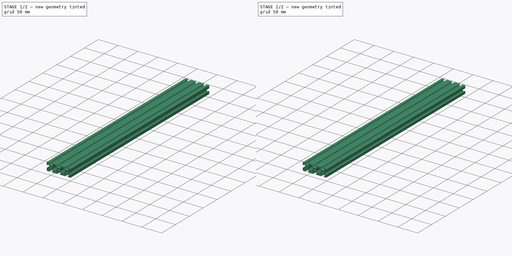
[diagram: build sequence overview — one tinted view per stage of 2, left to right]
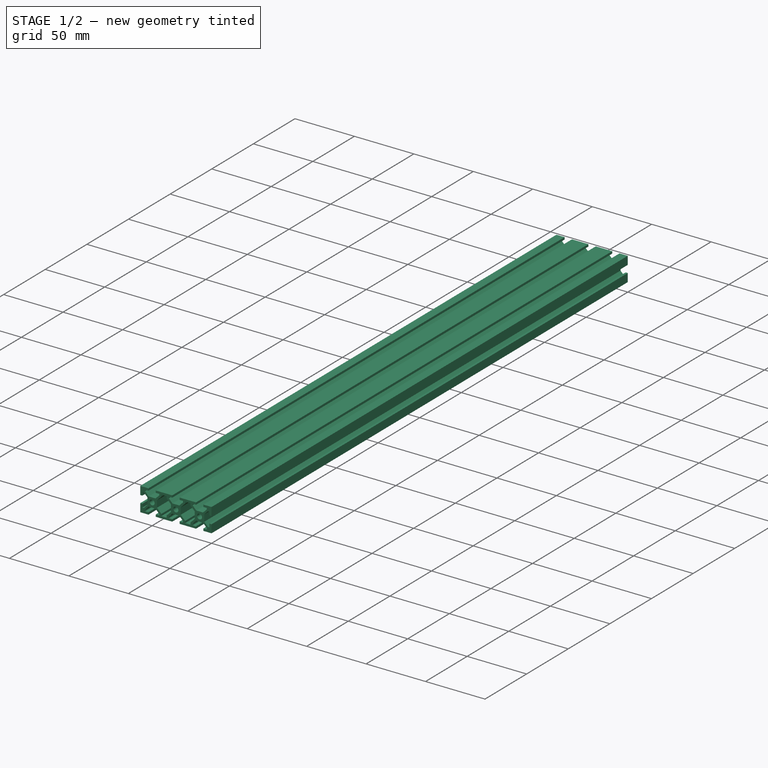
[diagram: stage 1 of 2 — iso view after this stage's code; geometry added in this stage tinted green]
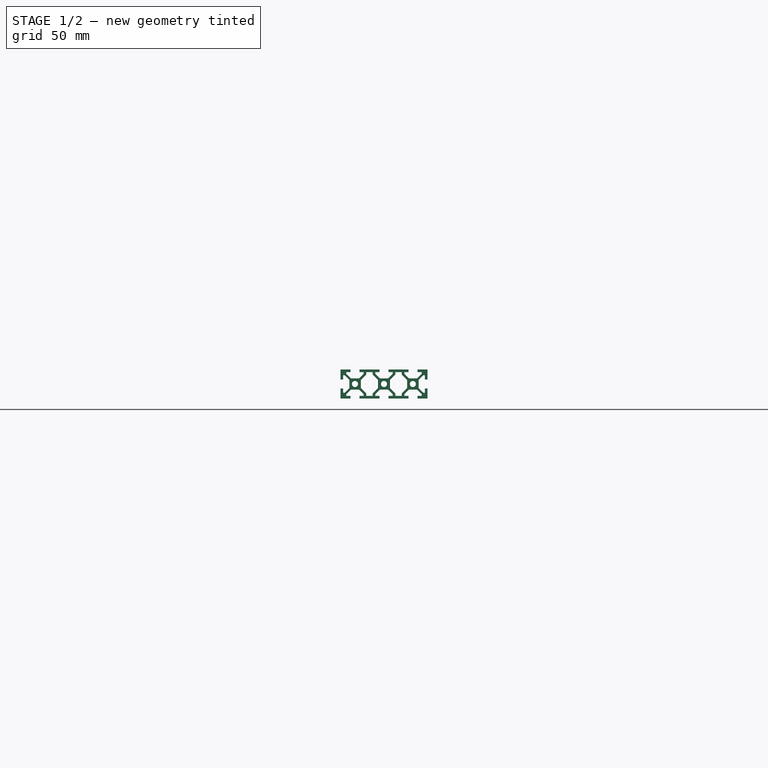
[diagram: stage 1 of 2 — front view after this stage's code; geometry added in this stage tinted green]
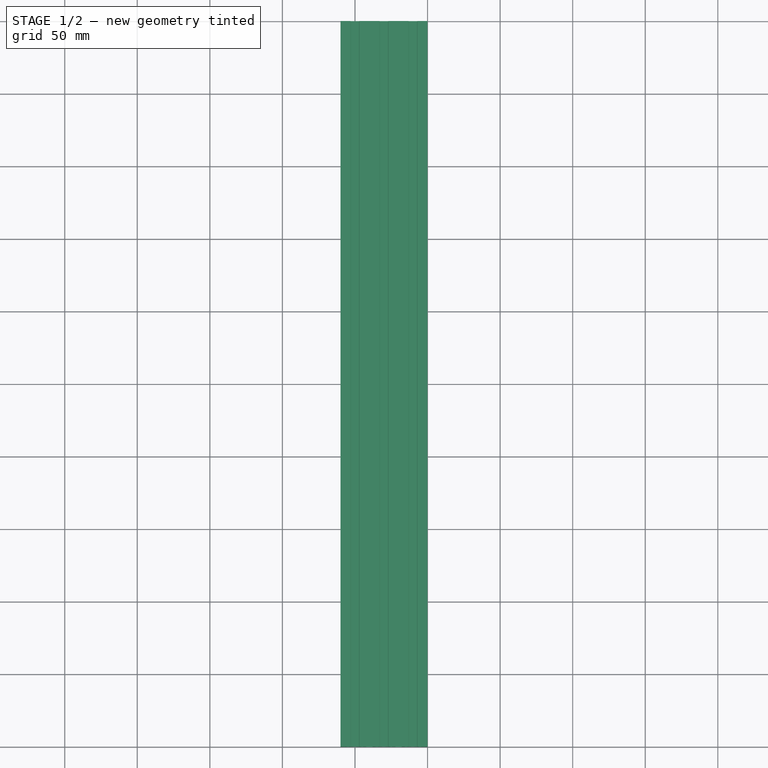
[diagram: stage 1 of 2 — top view after this stage's code; geometry added in this stage tinted green]
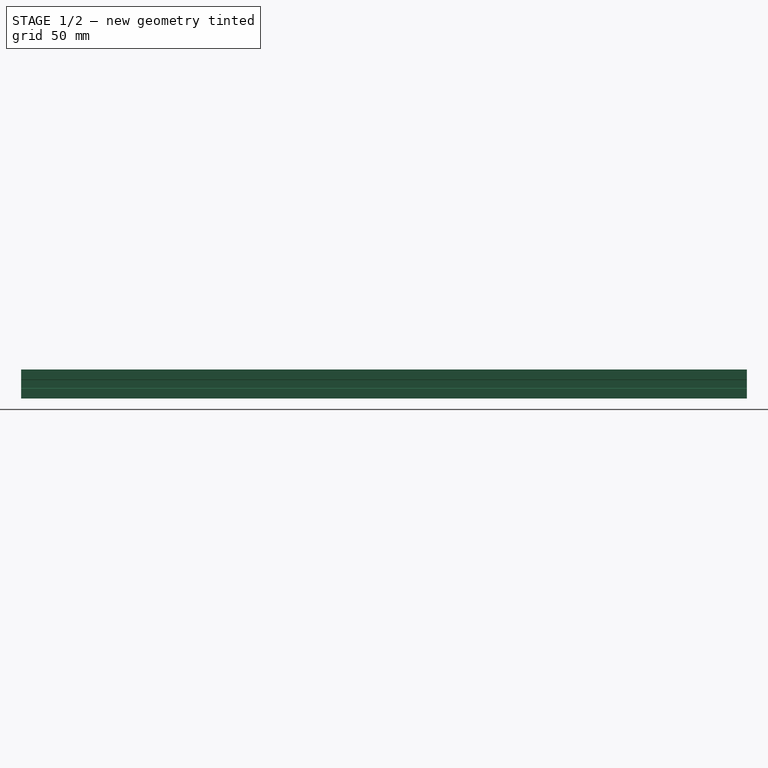
[diagram: stage 1 of 2 — right view after this stage's code; geometry added in this stage tinted green]
FCSTD DOCUMENT  (FreeCAD 0.21R33668 +7 (Git))
Label: 2060 Extrusion
License: All rights reserved
LicenseURL: http://en.wikipedia.org/wiki/All_rights_reserved
objects: Sketcher::SketchObject×1, PartDesign::Pad×1, PartDesign::Fillet×1, PartDesign::Body×1
note: 6 computed .brp shape members not serialized (recipe doc carries the construction recipe); baked Part::Feature solids carry a one-line shape summary decoded from their .brp

FEATURE [Sketcher::SketchObject] Sketch
  FullyConstrained = true
  MapMode = 5
  Placement = pos=(0,0,0) rot=(1,0,0;1.5708rad)
  Support = -> [XZ_Plane]
  sketch-geometry (118):
    g0: LineSegment StartX=-10 StartY=10 StartZ=0 EndX=-3.1 EndY=10 EndZ=0
    g1: LineSegment StartX=16.9 StartY=-10 StartZ=0 EndX=3.1 EndY=-10 EndZ=0
    g2: LineSegment StartX=-10 StartY=-10 StartZ=0 EndX=-10 EndY=-3.1 EndZ=0
    g3: LineSegment StartX=-3.1 StartY=10 StartZ=0 EndX=-3.1 EndY=8.2 EndZ=0
    g4: LineSegment StartX=-3.1 StartY=8.2 StartZ=0 EndX=-6 EndY=8.2 EndZ=0
    g5: LineSegment StartX=-6 StartY=8.2 StartZ=0 EndX=-6 EndY=7.06066 EndZ=0
    g6: LineSegment StartX=-6 StartY=7.06066 StartZ=0 EndX=-2.83934 EndY=3.9 EndZ=0
    g7: LineSegment StartX=-2.83934 StartY=3.9 StartZ=0 EndX=2.83934 EndY=3.9 EndZ=0
    g8: LineSegment StartX=2.83934 StartY=3.9 StartZ=0 EndX=6 EndY=7.06066 EndZ=0
    g9: LineSegment StartX=6 StartY=7.06066 StartZ=0 EndX=6 EndY=8.2 EndZ=0
    g10: LineSegment StartX=6 StartY=8.2 StartZ=0 EndX=3.1 EndY=8.2 EndZ=0
    g11: LineSegment StartX=3.1 StartY=8.2 StartZ=0 EndX=3.1 EndY=10 EndZ=0
    g12: LineSegment StartX=-10 StartY=3.1 StartZ=0 EndX=-8.2 EndY=3.1 EndZ=0
    g13: LineSegment StartX=-8.2 StartY=3.1 StartZ=0 EndX=-8.2 EndY=6 EndZ=0
    g14: LineSegment StartX=-8.2 StartY=6 StartZ=0 EndX=-7.06066 EndY=6 EndZ=0
    g15: LineSegment StartX=-7.06066 StartY=6 StartZ=0 EndX=-3.9 EndY=2.83934 EndZ=0
    g16: LineSegment StartX=-3.9 StartY=2.83934 StartZ=0 EndX=-3.9 EndY=-2.83934 EndZ=0
    g17: LineSegment StartX=-3.9 StartY=-2.83934 StartZ=0 EndX=-7.06066 EndY=-6 EndZ=0
    g18: LineSegment StartX=-7.06066 StartY=-6 StartZ=0 EndX=-8.2 EndY=-6 EndZ=0
    g19: LineSegment StartX=-8.2 StartY=-6 StartZ=0 EndX=-8.2 EndY=-3.1 EndZ=0
    g20: LineSegment StartX=-8.2 StartY=-3.1 StartZ=0 EndX=-10 EndY=-3.1 EndZ=0
    g21: LineSegment StartX=-3.1 StartY=-10 StartZ=0 EndX=-3.1 EndY=-8.2 EndZ=0
    g22: LineSegment StartX=-3.1 StartY=-8.2 StartZ=0 EndX=-6 EndY=-8.2 EndZ=0
    g23: LineSegment StartX=-6 StartY=-8.2 StartZ=0 EndX=-6 EndY=-7.06066 EndZ=0
    g24: LineSegment StartX=-6 StartY=-7.06066 StartZ=0 EndX=-2.83934 EndY=-3.9 EndZ=0
    g25: LineSegment StartX=-2.83934 StartY=-3.9 StartZ=0 EndX=2.83934 EndY=-3.9 EndZ=0
    g26: LineSegment StartX=2.83934 StartY=-3.9 StartZ=0 EndX=6 EndY=-7.06066 EndZ=0
    g27: LineSegment StartX=6 StartY=-7.06066 StartZ=0 EndX=6 EndY=-8.2 EndZ=0
    g28: LineSegment StartX=6 StartY=-8.2 StartZ=0 EndX=3.1 EndY=-8.2 EndZ=0
    g29: LineSegment StartX=3.1 StartY=-8.2 StartZ=0 EndX=3.1 EndY=-10 EndZ=0
    g30: LineSegment StartX=7.8 StartY=-6.53934 StartZ=0 EndX=4.1 EndY=-2.83934 EndZ=0
    g31: LineSegment StartX=4.1 StartY=-2.83934 StartZ=0 EndX=4.1 EndY=2.83934 EndZ=0
    g32: LineSegment StartX=4.1 StartY=2.83934 StartZ=0 EndX=7.8 EndY=6.53934 EndZ=0
    g33: LineSegment StartX=-10 StartY=3.1 StartZ=0 EndX=-10 EndY=10 EndZ=0
    g34: LineSegment StartX=3.1 StartY=10 StartZ=0 EndX=16.9 EndY=10 EndZ=0
    g35: LineSegment StartX=-3.1 StartY=-10 StartZ=0 EndX=-10 EndY=-10 EndZ=0
    g36: Circle CenterX=0 CenterY=0 CenterZ=0 NormalX=0 NormalY=0 NormalZ=1 AngleXU=0 Radius=2.1
    g37: LineSegment StartX=7.8 StartY=6.53934 StartZ=0 EndX=7.8 EndY=8.2 EndZ=0
    g38: LineSegment StartX=7.8 StartY=8.2 StartZ=0 EndX=12.2 EndY=8.2 EndZ=0
    g39: LineSegment StartX=12.2 StartY=8.2 StartZ=0 EndX=12.2 EndY=6.53934 EndZ=0
    g40: LineSegment StartX=12.2 StartY=6.53934 StartZ=0 EndX=15.9 EndY=2.83934 EndZ=0
    g41: LineSegment StartX=15.9 StartY=2.83934 StartZ=0 EndX=15.9 EndY=-2.83934 EndZ=0
    g42: LineSegment StartX=15.9 StartY=-2.83934 StartZ=0 EndX=12.2 EndY=-6.53934 EndZ=0
    g43: LineSegment StartX=12.2 StartY=-6.53934 StartZ=0 EndX=12.2 EndY=-8.2 EndZ=0
    g44: LineSegment StartX=12.2 StartY=-8.2 StartZ=0 EndX=7.8 EndY=-8.2 EndZ=0
    g45: LineSegment StartX=7.8 StartY=-8.2 StartZ=0 EndX=7.8 EndY=-6.53934 EndZ=0
    g46: LineSegment StartX=7.8 StartY=6.53934 StartZ=0 EndX=10 EndY=6.53934 EndZ=0
    g47: LineSegment StartX=10 StartY=6.53934 StartZ=0 EndX=12.2 EndY=6.53934 EndZ=0
    g48: LineSegment StartX=16.9 StartY=10 StartZ=0 EndX=16.9 EndY=8.2 EndZ=0
    g49: LineSegment StartX=16.9 StartY=8.2 StartZ=0 EndX=14 EndY=8.2 EndZ=0
    g50: LineSegment StartX=14 StartY=8.2 StartZ=0 EndX=14 EndY=7.06066 EndZ=0
    g51: LineSegment StartX=14 StartY=7.06066 StartZ=0 EndX=17.1607 EndY=3.9 EndZ=0
    g52: LineSegment StartX=17.1607 StartY=3.9 StartZ=0 EndX=22.8393 EndY=3.9 EndZ=0
    g53: LineSegment StartX=22.8393 StartY=3.9 StartZ=0 EndX=26 EndY=7.06066 EndZ=0
    g54: LineSegment StartX=26 StartY=7.06066 StartZ=0 EndX=26 EndY=8.2 EndZ=0
    g55: LineSegment StartX=26 StartY=8.2 StartZ=0 EndX=23.1 EndY=8.2 EndZ=0
    g56: LineSegment StartX=23.1 StartY=8.2 StartZ=0 EndX=23.1 EndY=10 EndZ=0
    g57: LineSegment StartX=23.1 StartY=10 StartZ=0 EndX=36.9 EndY=10 EndZ=0
    g58: LineSegment StartX=36.9 StartY=10 StartZ=0 EndX=36.9 EndY=8.2 EndZ=0
    g59: LineSegment StartX=36.9 StartY=8.2 StartZ=0 EndX=34 EndY=8.2 EndZ=0
    g60: LineSegment StartX=34 StartY=8.2 StartZ=0 EndX=34 EndY=7.06066 EndZ=0
    g61: LineSegment StartX=34 StartY=7.06066 StartZ=0 EndX=37.1607 EndY=3.9 EndZ=0
    g62: LineSegment StartX=37.1607 StartY=3.9 StartZ=0 EndX=42.8393 EndY=3.9 EndZ=0
    g63: LineSegment StartX=42.8393 StartY=3.9 StartZ=0 EndX=46 EndY=7.06066 EndZ=0
    g64: LineSegment StartX=46 StartY=7.06066 StartZ=0 EndX=46 EndY=8.2 EndZ=0
    g65: LineSegment StartX=46 StartY=8.2 StartZ=0 EndX=43.1 EndY=8.2 EndZ=0
    g66: LineSegment StartX=43.1 StartY=8.2 StartZ=0 EndX=43.1 EndY=10 EndZ=0
    g67: LineSegment StartX=43.1 StartY=10 StartZ=0 EndX=50 EndY=10 EndZ=0
    g68: LineSegment StartX=50 StartY=10 StartZ=0 EndX=50 EndY=3.1 EndZ=0
    g69: LineSegment StartX=50 StartY=3.1 StartZ=0 EndX=48.2 EndY=3.1 EndZ=0
    g70: LineSegment StartX=48.2 StartY=3.1 StartZ=0 EndX=48.2 EndY=6 EndZ=0
    g71: LineSegment StartX=48.2 StartY=6 StartZ=0 EndX=47.0607 EndY=6 EndZ=0
    g72: LineSegment StartX=47.0607 StartY=6 StartZ=0 EndX=43.9 EndY=2.83934 EndZ=0
    g73: LineSegment StartX=43.9 StartY=2.83934 StartZ=0 EndX=43.9 EndY=-2.83934 EndZ=0
    g74: LineSegment StartX=43.9 StartY=-2.83934 StartZ=0 EndX=47.0607 EndY=-6 EndZ=0
    g75: LineSegment StartX=47.0607 StartY=-6 StartZ=0 EndX=48.2 EndY=-6 EndZ=0
    g76: LineSegment StartX=48.2 StartY=-6 StartZ=0 EndX=48.2 EndY=-3.1 EndZ=0
    g77: LineSegment StartX=48.2 StartY=-3.1 StartZ=0 EndX=50 EndY=-3.1 EndZ=0
    g78: LineSegment StartX=50 StartY=-3.1 StartZ=0 EndX=50 EndY=-10 EndZ=0
    g79: LineSegment StartX=50 StartY=-10 StartZ=0 EndX=43.1 EndY=-10 EndZ=0
    g80: LineSegment StartX=43.1 StartY=-10 StartZ=0 EndX=43.1 EndY=-8.2 EndZ=0
    g81: LineSegment StartX=43.1 StartY=-8.2 StartZ=0 EndX=46 EndY=-8.2 EndZ=0
    g82: LineSegment StartX=46 StartY=-8.2 StartZ=0 EndX=46 EndY=-7.06066 EndZ=0
    g83: LineSegment StartX=46 StartY=-7.06066 StartZ=0 EndX=42.8393 EndY=-3.9 EndZ=0
    g84: LineSegment StartX=42.8393 StartY=-3.9 StartZ=0 EndX=37.1607 EndY=-3.9 EndZ=0
    g85: LineSegment StartX=37.1607 StartY=-3.9 StartZ=0 EndX=34 EndY=-7.06066 EndZ=0
    g86: LineSegment StartX=34 StartY=-7.06066 StartZ=0 EndX=34 EndY=-8.2 EndZ=0
    g87: LineSegment StartX=34 StartY=-8.2 StartZ=0 EndX=36.9 EndY=-8.2 EndZ=0
    g88: LineSegment StartX=36.9 StartY=-8.2 StartZ=0 EndX=36.9 EndY=-10 EndZ=0
    g89: LineSegment StartX=36.9 StartY=-10 StartZ=0 EndX=23.1 EndY=-10 EndZ=0
    g90: LineSegment StartX=23.1 StartY=-10 StartZ=0 EndX=23.1 EndY=-8.2 EndZ=0
    g91: LineSegment StartX=23.1 StartY=-8.2 StartZ=0 EndX=26 EndY=-8.2 EndZ=0
    g92: LineSegment StartX=26 StartY=-8.2 StartZ=0 EndX=26 EndY=-7.06066 EndZ=0
    g93: LineSegment StartX=26 StartY=-7.06066 StartZ=0 EndX=22.8393 EndY=-3.9 EndZ=0
    g94: LineSegment StartX=22.8393 StartY=-3.9 StartZ=0 EndX=17.1607 EndY=-3.9 EndZ=0
    g95: LineSegment StartX=17.1607 StartY=-3.9 StartZ=0 EndX=14 EndY=-7.06066 EndZ=0
    g96: LineSegment StartX=14 StartY=-7.06066 StartZ=0 EndX=14 EndY=-8.2 EndZ=0
    g97: LineSegment StartX=14 StartY=-8.2 StartZ=0 EndX=16.9 EndY=-8.2 EndZ=0
    g98: LineSegment StartX=16.9 StartY=-8.2 StartZ=0 EndX=16.9 EndY=-10 EndZ=0
    g99: LineSegment StartX=12.2 StartY=8.2 StartZ=0 EndX=14 EndY=8.2 EndZ=0
    g100: LineSegment StartX=6 StartY=8.2 StartZ=0 EndX=7.8 EndY=8.2 EndZ=0
    g101: LineSegment StartX=27.8 StartY=8.2 StartZ=0 EndX=27.8 EndY=6.53934 EndZ=0
    g102: LineSegment StartX=27.8 StartY=6.53934 StartZ=0 EndX=24.1 EndY=2.83934 EndZ=0
    g103: LineSegment StartX=24.1 StartY=2.83934 StartZ=0 EndX=24.1 EndY=-2.83934 EndZ=0
    g104: LineSegment StartX=24.1 StartY=-2.83934 StartZ=0 EndX=27.8 EndY=-6.53934 EndZ=0
    g105: LineSegment StartX=27.8 StartY=-6.53934 StartZ=0 EndX=27.8 EndY=-8.2 EndZ=0
    g106: LineSegment StartX=27.8 StartY=-8.2 StartZ=0 EndX=32.2 EndY=-8.2 EndZ=0
    g107: LineSegment StartX=32.2 StartY=-8.2 StartZ=0 EndX=32.2 EndY=-6.53934 EndZ=0
    g108: LineSegment StartX=32.2 StartY=-6.53934 StartZ=0 EndX=35.9 EndY=-2.83934 EndZ=0
    g109: LineSegment StartX=35.9 StartY=-2.83934 StartZ=0 EndX=35.9 EndY=2.83934 EndZ=0
    g110: LineSegment StartX=35.9 StartY=2.83934 StartZ=0 EndX=32.2 EndY=6.53934 EndZ=0
    g111: LineSegment StartX=32.2 StartY=6.53934 StartZ=0 EndX=32.2 EndY=8.2 EndZ=0
    g112: LineSegment StartX=32.2 StartY=8.2 StartZ=0 EndX=27.8 EndY=8.2 EndZ=0
    g113: LineSegment StartX=26 StartY=8.2 StartZ=0 EndX=27.8 EndY=8.2 EndZ=0
    g114: Circle CenterX=20 CenterY=4e-16 CenterZ=0 NormalX=0 NormalY=0 NormalZ=1 AngleXU=0 Radius=2.1
    g115: Circle CenterX=39.9 CenterY=-1.2e-15 CenterZ=0 NormalX=0 NormalY=0 NormalZ=1 AngleXU=0 Radius=2.1
    g116: LineSegment StartX=32.2 StartY=8.2 StartZ=0 EndX=34 EndY=8.2 EndZ=0
    g117: LineSegment StartX=32.2 StartY=-8.2 StartZ=0 EndX=34 EndY=-8.2 EndZ=0
  constraints (339):
    c: Coincident(g35,g2)
    c: Coincident(g33,g0)
    c: Horizontal(g0)
    c: Horizontal(g1)
    c: Vertical(g3)
    c: Coincident(g3,g4)
    c: Horizontal(g4)
    c: Coincident(g4,g5)
    c: Vertical(g5)
    c: Coincident(g5,g6)
    c: Coincident(g6,g7)
    c: Coincident(g8,g9)
    c: Vertical(g9)
    c: Coincident(g9,g10)
    c: Horizontal(g10)
    c: Coincident(g10,g11)
    c: Vertical(g11)
    c: Horizontal(g12)
    c: Coincident(g12,g13)
    c: Vertical(g13)
    c: Coincident(g13,g14)
    c: Coincident(g14,g15)
    c: Coincident(g15,g16)
    c: Coincident(g17,g18)
    c: Coincident(g18,g19)
    c: Vertical(g19)
    c: Coincident(g19,g20)
    c: Horizontal(g20)
    c: Vertical(g21)
    c: Coincident(g21,g22)
    c: Horizontal(g22)
    c: Coincident(g22,g23)
    c: Coincident(g23,g24)
    c: Coincident(g25,g26)
    c: Coincident(g26,g27)
    c: Coincident(g27,g28)
    c: Horizontal(g28)
    c: Coincident(g28,g29)
    c: Vertical(g29)
    c: Coincident(g30,g31)
    c: Coincident(g2,g20)
    c: Coincident(g33,g12)
    c: Tangent(g2,g33)
    c: Coincident(g0,g3)
    c: Coincident(g34,g11)
    c: Coincident(g1,g29)
    c: Coincident(g35,g21)
    c: Equal(g0,g33)
    c: Equal(g33,g2)
    c: Equal(g2,g35)
    c: Equal(g3,g11)
    c: Equal(g29,g21)
    c: Equal(g21,g20)
    c: Equal(g20,g12)
    c: Horizontal(g18)
    c: Vertical(g27)
    c: Horizontal(g14)
    c: Vertical(g23)
    c: Equal(g18,g23)
    c: Equal(g23,g27)
    c: Equal(g9,g5)
    c: Equal(g5,g14)
    c: Equal(g13,g4)
    c: Equal(g4,g10)
    c: Equal(g28,g22)
    c: Equal(g22,g19)
    c: Parallel(g15,g6)
    c: Parallel(g32,g8)
    c: Parallel(g17,g24)
    c: Equal(g24,g17)
    c: Perpendicular(g17,g15)
    c: DistanceX(g12,g12) = 1.8
    c: DistanceY(g2,g0) = 20
    c: DistanceX(g17,g30) = 8
    c: DistanceY(g18,g13) = 12
    c: Coincident(g36,g-1)
    c: Diameter(g36) = 4.2
    c: Distance(g14,g5) = 1.5
    c: Coincident(g7,g8)
    c: Coincident(g16,g17)
    c: Coincident(g31,g32)
    c: Coincident(g24,g25)
    c: DistanceX(g0,g-1) = 10
    c: Symmetric(g0,g2,g-1)
    c: Equal(g7,g16)
    c: Equal(g16,g25)
    c: Equal(g25,g31)
    c: Symmetric(g6,g7,g-2)
    c: Symmetric(g15,g16,g-1)
    c: Symmetric(g31,g30,g-1)
    c: Symmetric(g24,g25,g-2)
    c: Parallel(g26,g15)
    c: Parallel(g8,g17)
    c: DistanceY(g24,g6) = 7.8
    c: Equal(g12,g3)
    c: Equal(g18,g14)
    c: Parallel(g30,g26)
    c: Equal(g30,g32)
    c: Coincident(g32,g37)
    c: Vertical(g37)
    c: Coincident(g37,g38)
    c: Horizontal(g38)
    c: Coincident(g38,g39)
    c: Vertical(g39)
    c: Coincident(g39,g40)
    c: Coincident(g40,g41)
    c: Vertical(g41)
    c: Coincident(g41,g42)
    c: Coincident(g42,g43)
    c: Vertical(g43)
    c: Coincident(g43,g44)
    c: Horizontal(g44)
    c: Coincident(g44,g45)
    c: Coincident(g45,g30)
    c: Vertical(g45)
    c: Equal(g45,g37)
    c: Horizontal(g37,g9)
    c: DistanceX(g9,g37) = 1.8
    c: Equal(g43,g45)
    c: Equal(g42,g40)
    c: Equal(g41,g31)
    c: Equal(g37,g39)
    c: Coincident(g46,g32)
    c: Horizontal(g46)
    c: Coincident(g47,g46)
    c: Coincident(g47,g39)
    c: Equal(g47,g46)
    c: DistanceX(g36,g46) = 10
    c: Equal(g40,g32)
    c: Equal(g44,g38)
    c: Horizontal(g35)
    c: Equal(g1,g34)
    c: DistanceX(g0,g11) = 6.2
    c: Horizontal(g34)
    c: Horizontal(g11,g0)
    c: Horizontal(g1,g21)
    c: Coincident(g34,g48)
    c: Vertical(g48)
    c: Coincident(g48,g49)
    c: Horizontal(g49)
    c: Coincident(g49,g50)
    c: Vertical(g50)
    c: Coincident(g50,g51)
    c: Coincident(g51,g52)
    c: Horizontal(g52)
    c: Coincident(g52,g53)
    c: Coincident(g53,g54)
    c: Vertical(g54)
    c: Coincident(g54,g55)
    c: Horizontal(g55)
    c: Coincident(g55,g56)
    c: Vertical(g56)
    c: Horizontal(g57)
    c: Coincident(g57,g58)
    c: Vertical(g58)
    c: Coincident(g58,g59)
    c: Horizontal(g59)
    c: Coincident(g59,g60)
    c: Vertical(g60)
    c: Coincident(g60,g61)
    c: Coincident(g61,g62)
    c: Horizontal(g62)
    c: Coincident(g62,g63)
    c: Coincident(g63,g64)
    c: Coincident(g64,g65)
    c: Horizontal(g65)
    c: Coincident(g65,g66)
    c: Vertical(g66)
    c: Coincident(g66,g67)
    c: Horizontal(g67)
    c: Coincident(g67,g68)
    c: Vertical(g68)
    c: Coincident(g68,g69)
    c: Horizontal(g69)
    c: Coincident(g69,g70)
    c: Vertical(g70)
    c: Coincident(g70,g71)
    c: Coincident(g71,g72)
    c: Coincident(g72,g73)
    c: Vertical(g73)
    c: Coincident(g73,g74)
    c: Coincident(g74,g75)
    c: Coincident(g75,g76)
    c: Vertical(g76)
    c: Coincident(g76,g77)
    c: Horizontal(g77)
    c: Coincident(g77,g78)
    c: Vertical(g78)
    c: Coincident(g78,g79)
    c: Horizontal(g79)
    c: Coincident(g79,g80)
    c: Vertical(g80)
    c: Coincident(g80,g81)
    c: Horizontal(g81)
    c: Coincident(g81,g82)
    c: Vertical(g82)
    c: Coincident(g82,g83)
    c: Coincident(g83,g84)
    c: Horizontal(g84)
    c: Coincident(g84,g85)
    c: Coincident(g85,g86)
    c: Coincident(g86,g87)
    c: Horizontal(g87)
    c: Coincident(g87,g88)
    c: Vertical(g88)
    c: Coincident(g88,g89)
    c: Horizontal(g89)
    c: Coincident(g90,g91)
    c: Horizontal(g91)
    c: Coincident(g91,g92)
    c: Coincident(g92,g93)
    c: Coincident(g93,g94)
    c: Horizontal(g94)
    c: Coincident(g94,g95)
    c: Coincident(g95,g96)
    c: Coincident(g96,g97)
    c: Horizontal(g97)
    c: Coincident(g97,g98)
    c: Coincident(g98,g1)
    c: Vertical(g98)
    c: Vertical(g90)
    c: Vertical(g86)
    c: Horizontal(g71)
    c: Horizontal(g75)
    c: Parallel(g63,g72)
    c: Parallel(g53,g32)
    c: Equal(g50,g9)
    c: Equal(g9,g54)
    c: Equal(g60,g64)
    c: Equal(g64,g71)
    c: Equal(g71,g75)
    c: Equal(g75,g82)
    c: Equal(g82,g86)
    c: Equal(g92,g96)
    c: Vertical(g96)
    c: Vertical(g92)
    c: Equal(g88,g80)
    c: Equal(g80,g77)
    c: Equal(g77,g69)
    c: Equal(g69,g66)
    c: Equal(g66,g58)
    c: Equal(g56,g48)
    c: Equal(g48,g11)
    c: Equal(g49,g10)
    c: Equal(g10,g55)
    c: Equal(g55,g97)
    c: Equal(g97,g91)
    c: Equal(g87,g81)
    c: Equal(g81,g76)
    c: Equal(g76,g70)
    c: Equal(g70,g65)
    c: Equal(g65,g59)
    c: Parallel(g95,g42)
    c: Parallel(g85,g95)
    c: Vertical(g64)
    c: Parallel(g83,g74)
    c: Parallel(g74,g61)
    c: Parallel(g93,g51)
    c: Parallel(g51,g40)
    c: Equal(g62,g84)
    c: Equal(g84,g73)
    c: Equal(g73,g41)
    c: Equal(g95,g93)
    c: Equal(g95,g26)
    c: Equal(g51,g53)
    c: Equal(g67,g79)
    c: Equal(g78,g68)
    c: Equal(g78,g2)
    c: Coincident(g99,g38)
    c: Coincident(g100,g9)
    c: Coincident(g100,g37)
    c: Coincident(g99,g49)
    c: Equal(g99,g100)
    c: Equal(g51,g95)
    c: Equal(g83,g85)
    c: Equal(g79,g78)
    c: Equal(g63,g61)
    c: Vertical(g101)
    c: Coincident(g101,g102)
    c: Coincident(g102,g103)
    c: Vertical(g103)
    c: Coincident(g103,g104)
    c: Coincident(g104,g105)
    c: Horizontal(g106)
    c: Coincident(g106,g107)
    c: Vertical(g107)
    c: Coincident(g107,g108)
    c: Coincident(g108,g109)
    c: Vertical(g109)
    c: Coincident(g109,g110)
    c: Coincident(g110,g111)
    c: Coincident(g111,g112)
    c: Horizontal(g112)
    c: Vertical(g111)
    c: Vertical(g105)
    c: Parallel(g93,g104)
    c: Parallel(g53,g102)
    c: Equal(g104,g102)
    c: Equal(g110,g108)
    c: Equal(g108,g40)
    c: Equal(g37,g101)
    c: Equal(g109,g73)
    c: Coincident(g113,g54)
    c: Coincident(g113,g101)
    c: Horizontal(g113)
    c: Equal(g103,g94)
    c: Equal(g114,g36)
    c: Symmetric(g40,g103,g114)
    c: Symmetric(g109,g73,g115)
    c: Coincident(g57,g56)
    c: Coincident(g112,g101)
    c: Equal(g102,g40)
    c: Equal(g52,g41)
    c: Equal(g94,g41)
    c: Equal(g113,g99)
    c: Equal(g96,g27)
    c: Equal(g98,g29)
    c: Equal(g98,g90)
    c: Equal(g105,g43)
    c: Equal(g111,g101)
    c: Coincident(g89,g90)
    c: Coincident(g105,g106)
    c: Parallel(g110,g61)
    c: Parallel(g110,g40)
    c: Parallel(g108,g85)
    c: Coincident(g116,g111)
    c: Coincident(g116,g59)
    c: Horizontal(g116)
    c: Equal(g116,g113)
    c: Equal(g61,g53)
    c: Equal(g72,g63)
    c: Equal(g60,g54)
    c: Parallel(g63,g53)
    c: Equal(g59,g55)
    c: Coincident(g117,g106)
    c: Coincident(g117,g86)
    c: Equal(g117,g116)
    c: Equal(g115,g114)
    c: Equal(g106,g44)
FEATURE [PartDesign::Pad] Pad
  Direction = (0,-1,-2e-16)
  Length = 500
  Length2 = 100
  Midplane = true
  Placement = pos=(0,0,0) rot=(1,0,0;1.5708rad)
  Profile = -> Sketch
  ReferenceAxis = -> Sketch [N_Axis]
  Type = 0
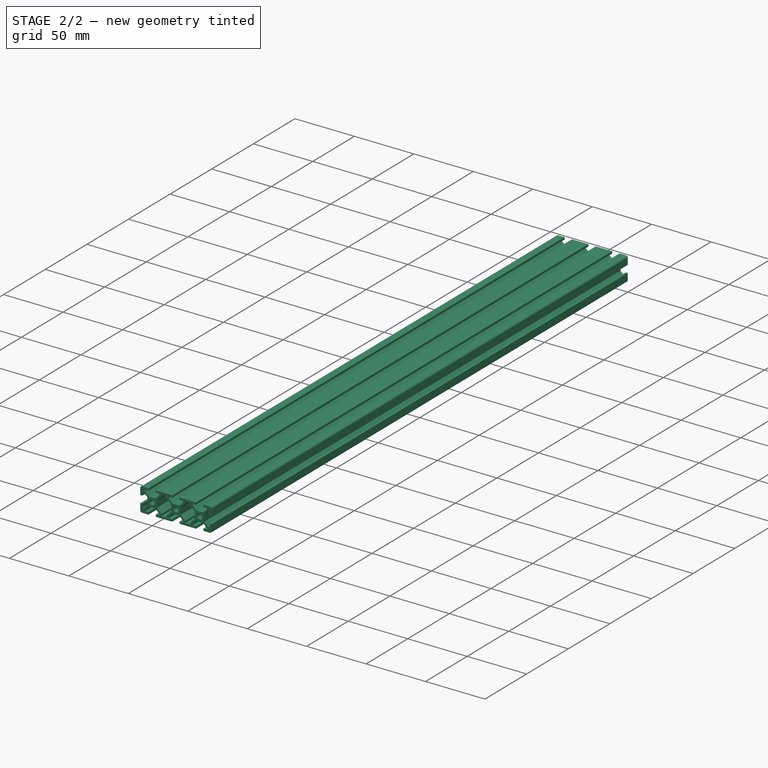
[diagram: stage 2 of 2 — iso view after this stage's code; geometry added in this stage tinted green]
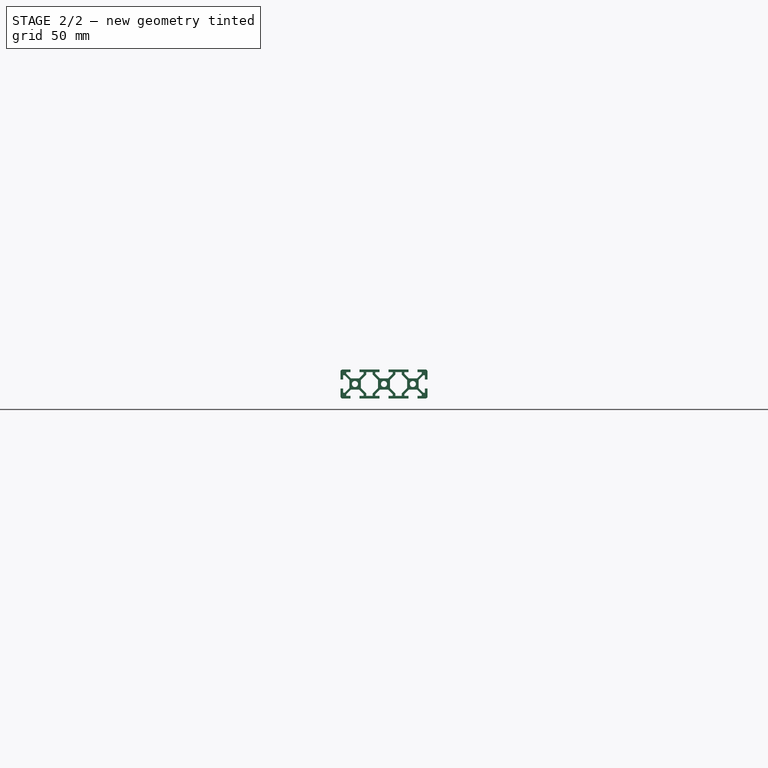
[diagram: stage 2 of 2 — front view after this stage's code; geometry added in this stage tinted green]
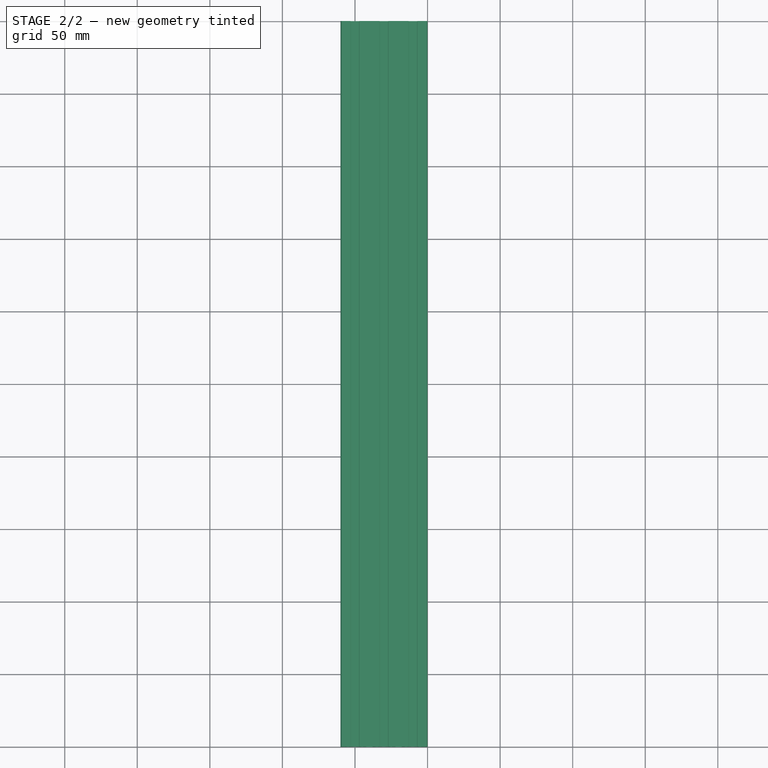
[diagram: stage 2 of 2 — top view after this stage's code; geometry added in this stage tinted green]
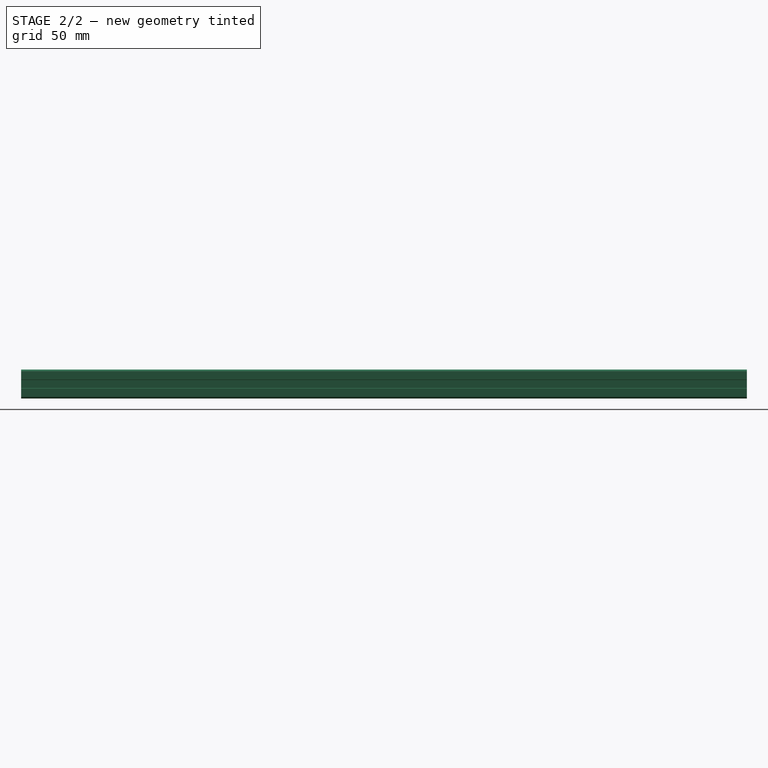
[diagram: stage 2 of 2 — right view after this stage's code; geometry added in this stage tinted green]
FEATURE [PartDesign::Fillet] Fillet
  Base = -> Pad [Edge2,Edge95,Edge221,Edge128]
  BaseFeature = -> Pad
  Placement = pos=(0,0,0) rot=(1,0,0;1.5708rad)
  Radius = 1.5
  SupportTransform = false
  UseAllEdges = false
FEATURE [PartDesign::Body] Body
  Group = -> [Sketch,Pad,Fillet]
  Origin = -> Origin
  Placement = pos=(-30,0,0) rot=(0,0,1;0rad)
  Tip = -> Fillet
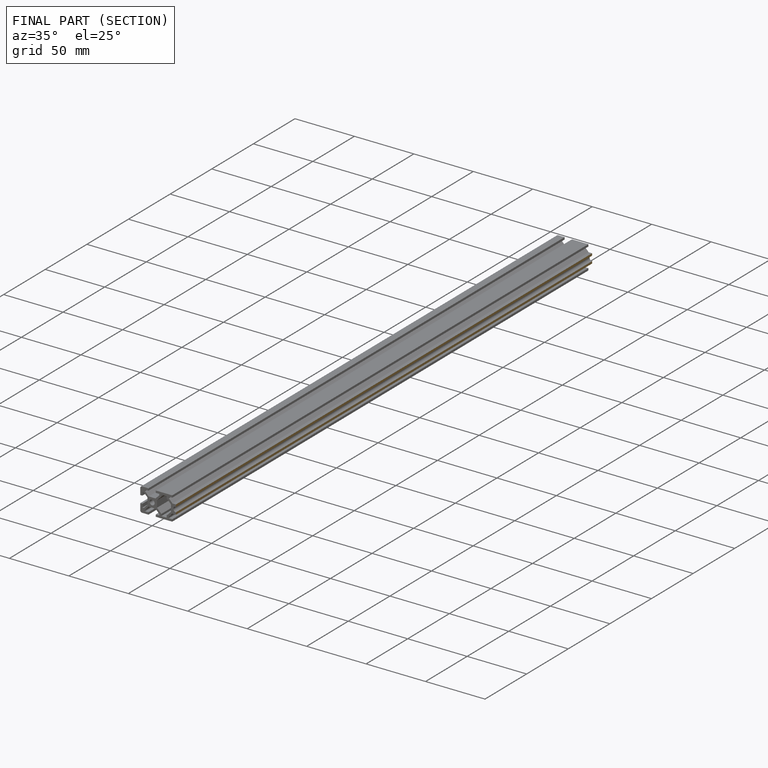
[diagram: finished part — half-section view (interior)]
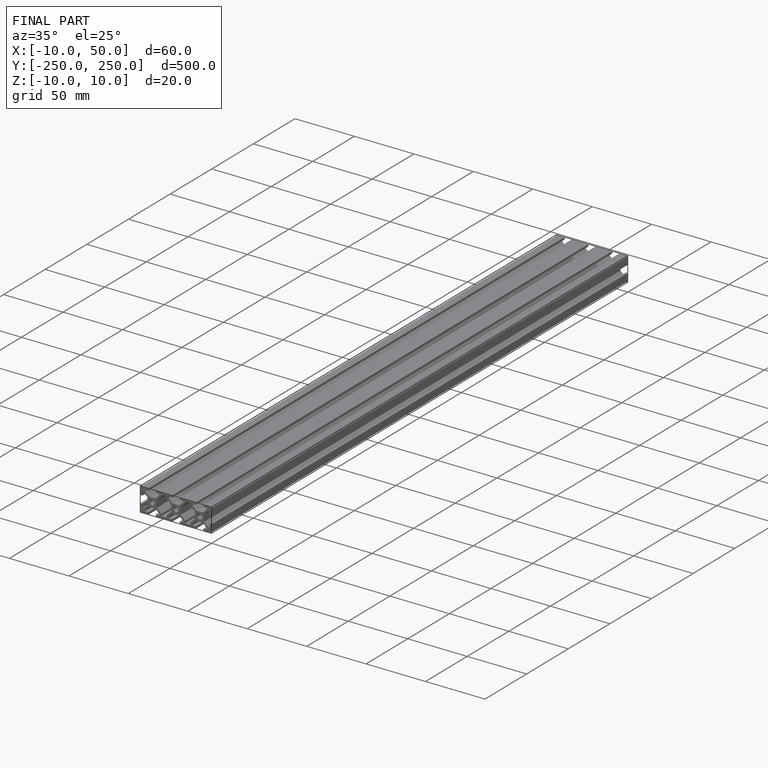
[diagram: finished part — iso view with bounding-box wireframe]
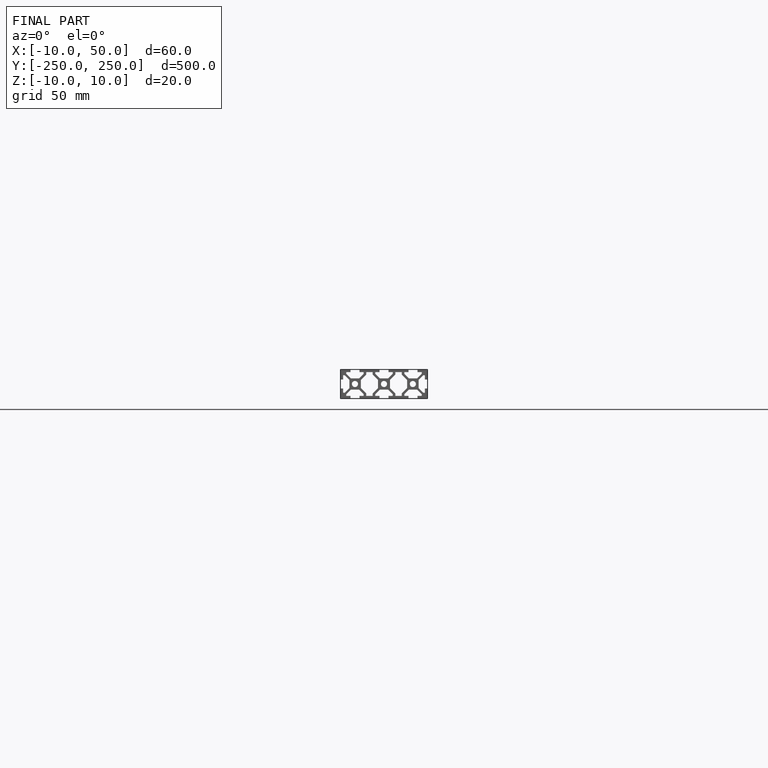
[diagram: finished part — front view with bounding-box wireframe]
